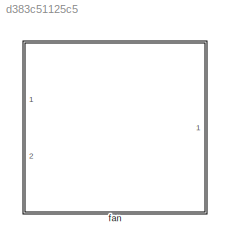
MODEL slx_d383c51125c5
KIND model
CONFIG AbsTol = auto
CONFIG EnableMultiTasking = on
CONFIG FixedStep = auto
CONFIG MaxStep = auto
CONFIG MinStep = auto
CONFIG RelTol = 1e-3
CONFIG SampleTimeConstraint = Unconstrained
CONFIG Solver = FixedStepAuto
CONFIG SolverName = FixedStepAuto
CONFIG StartTime = 0.0
CONFIG StopTime = 10.0
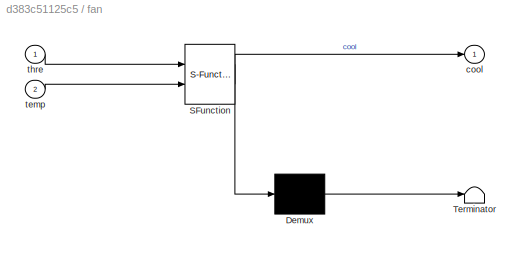
BLOCK [SubSystem] fan
  ErrorFcn = Stateflow.Translate.translate
  PermitHierarchicalResolution = ExplicitOnly
  Ports = [2, 1]
  RequestExecContextInheritance = off
  SFBlockType = Chart
  TreatAsAtomicUnit = on
BLOCK [Demux] fan/ Demux 
  Outputs = 1
  Ports = [1, 1]
BLOCK [S-Function] fan/ SFunction 
  EnableBusSupport = on
  FunctionName = sf_sfun
  PortCounts = [2 2]
  Ports = [2, 2]
  SFcnIsStateOwnerBlock = off
  SFunctionDeploymentMode = off
  Tag = Stateflow S-Function 3
BLOCK [Terminator] fan/ Terminator 
BLOCK [Outport] fan/cool
BLOCK [Inport] fan/temp
  Port = 2
BLOCK [Inport] fan/thre
CHART fan states=2 transitions=3
  STATE_LABEL 'idle\ncool=0;'
  STATE_LABEL 'cool\ncool=1;'
CHART  states=0 transitions=0
